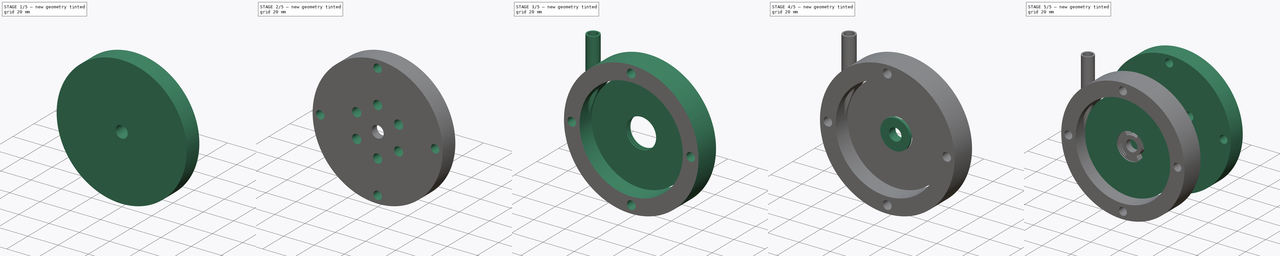
[diagram: build sequence overview — one tinted view per stage of 5, left to right]
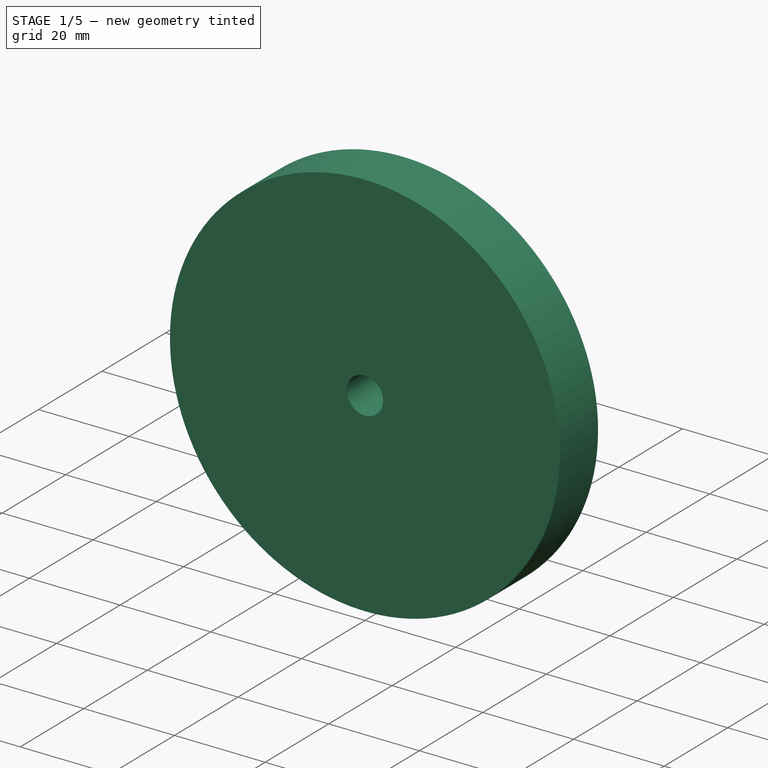
[diagram: stage 1 of 5 — iso view after this stage's code; geometry added in this stage tinted green]
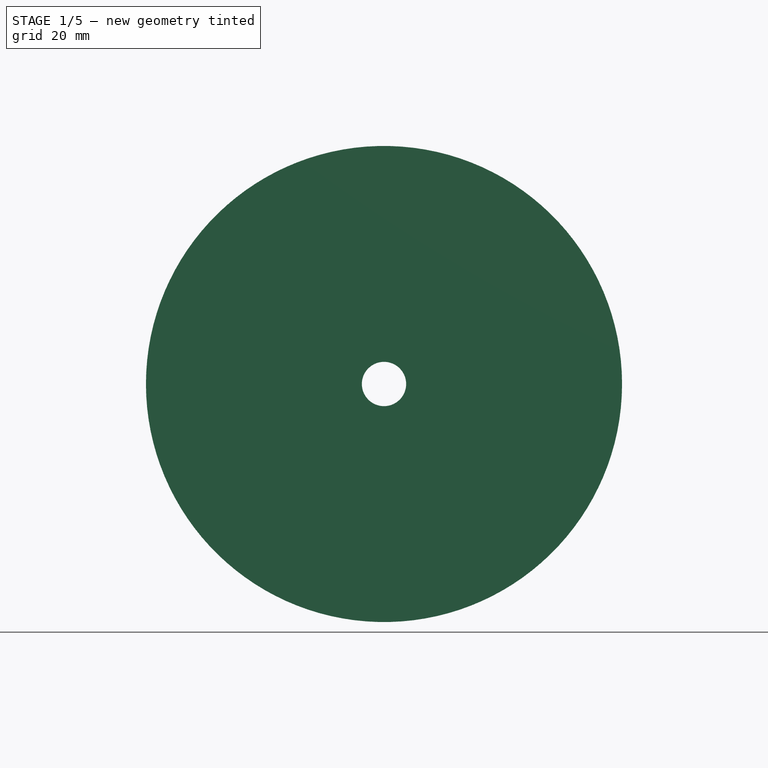
[diagram: stage 1 of 5 — front view after this stage's code; geometry added in this stage tinted green]
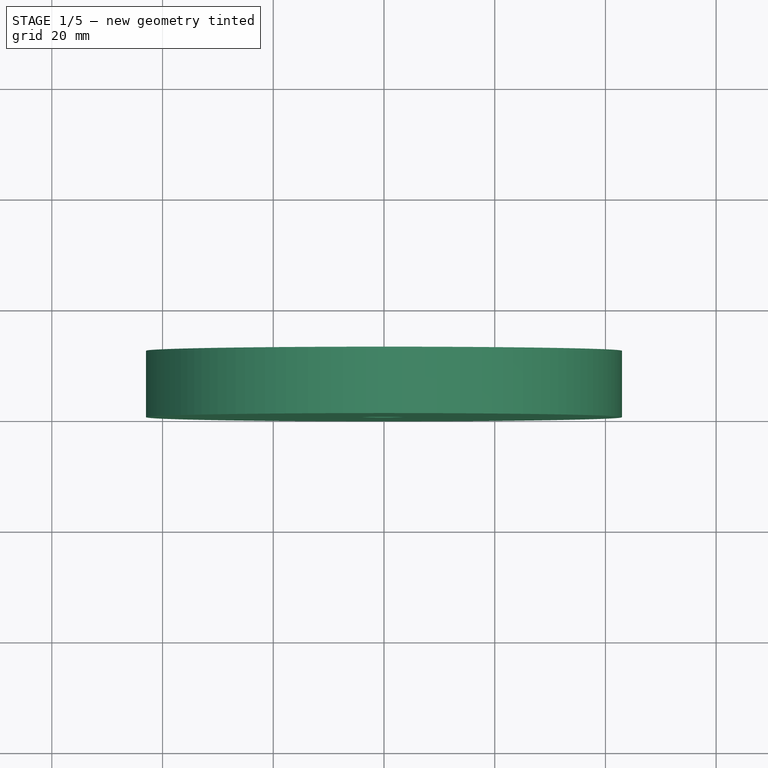
[diagram: stage 1 of 5 — top view after this stage's code; geometry added in this stage tinted green]
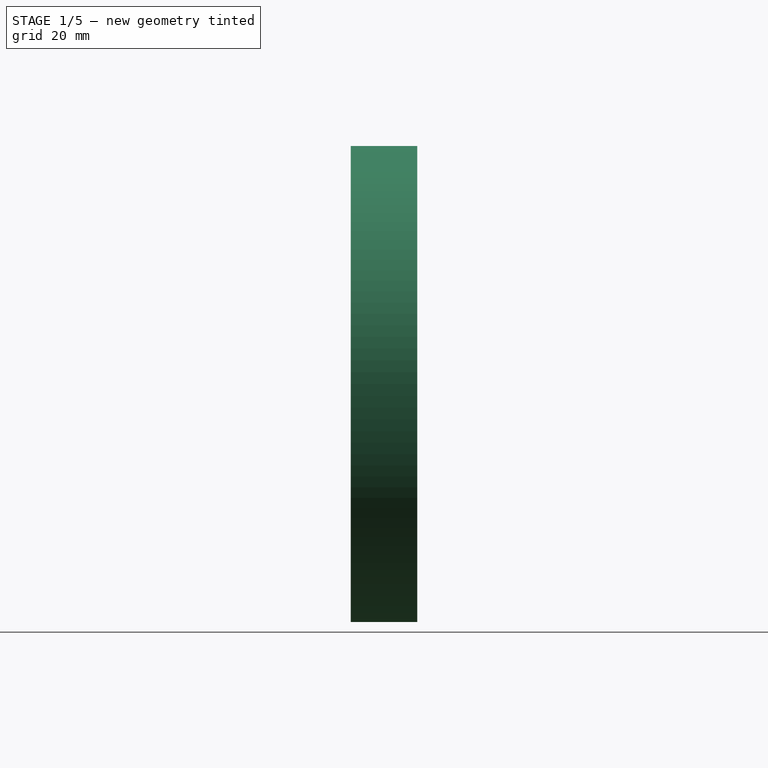
[diagram: stage 1 of 5 — right view after this stage's code; geometry added in this stage tinted green]
FCSTD DOCUMENT  (FreeCAD 0.17R13541 (Git))
Label: 特斯拉叶轮机-渲染
License: All rights reserved
LicenseURL: http://en.wikipedia.org/wiki/All_rights_reserved
objects: Raytracing::RayFeature×17, Sketcher::SketchObject×14, PartDesign::ShapeBinder×7, Part::Mirroring×7, PartDesign::Pocket×6, Part::Feature×6, PartDesign::Body×5, PartDesign::Pad×4, PartDesign::PolarPattern×4, PartDesign::Groove×2, PartDesign::Revolution×1, Part::Compound×1, Raytracing::RayProject×1
note: 70 computed .brp shape members not serialized (recipe doc carries the construction recipe); baked Part::Feature solids carry a one-line shape summary decoded from their .brp

FEATURE [Sketcher::SketchObject] Sketch
  MapMode = 5
  Placement = pos=(0,0,0) rot=(1,0,0;1.5708rad)
  Support = -> [XZ_Plane]
  sketch-geometry (14):
    g0: Circle CenterX=0 CenterY=0 CenterZ=0 NormalX=0 NormalY=0 NormalZ=1 AngleXU=0 Radius=4
    g1: Circle CenterX=0 CenterY=0 CenterZ=0 NormalX=0 NormalY=0 NormalZ=1 AngleXU=0 Radius=9.525
    g2: Circle CenterX=0 CenterY=0 CenterZ=0 NormalX=0 NormalY=0 NormalZ=1 AngleXU=0 Radius=43
    g3: Circle CenterX=0 CenterY=0 CenterZ=0 NormalX=0 NormalY=0 NormalZ=1 AngleXU=0 Radius=31.75
    g4: Circle CenterX=0 CenterY=0 CenterZ=0 NormalX=0 NormalY=0 NormalZ=1 AngleXU=0 Radius=33
    g5: LineSegment [constr] StartX=-31.75 StartY=0 StartZ=0 EndX=-33 EndY=0 EndZ=0
    g6: LineSegment [constr] StartX=-33 StartY=0 StartZ=0 EndX=-43 EndY=0 EndZ=0
    g7: LineSegment StartX=-33 StartY=0 StartZ=0 EndX=-30 EndY=0 EndZ=0
    g8: LineSegment StartX=-30 StartY=0 StartZ=0 EndX=-30 EndY=50 EndZ=0
    g9: LineSegment StartX=-30 StartY=50 StartZ=0 EndX=-33 EndY=50 EndZ=0
    g10: LineSegment StartX=-33 StartY=50 StartZ=0 EndX=-33 EndY=0 EndZ=0
    g11: LineSegment StartX=-30 StartY=50 StartZ=0 EndX=-26 EndY=50 EndZ=0
    g12: LineSegment StartX=-26 StartY=50 StartZ=0 EndX=-26 EndY=0 EndZ=0
    g13: LineSegment StartX=-26 StartY=0 StartZ=0 EndX=-30 EndY=0 EndZ=0
  constraints (36):
    c: Coincident(g0,g-1)
    c: Coincident(g1,g-1)
    c: Coincident(g2,g-1)
    c: Coincident(g3,g-1)
    c: Radius(g0) = 4  '轴半径'
    c: Coincident(g4,g-1)
    c: Radius(g1) = 9.525
    c: Radius(g3) = 31.75  '盘片半径'
    c: PointOnObject(g5,g3)
    c: PointOnObject(g5,g4)
    c: Coincident(g6,g5)
    c: PointOnObject(g6,g2)
    c: Horizontal(g6)
    c: PointOnObject(g5,g-1)
    c: Horizontal(g5)
    c: DistanceX(g5,g5) = 1.25  '盘片与腔体内壁间隙'
    c: DistanceX(g6,g5) = 10  '腔体壁厚'
    c: Coincident(g7,g8)
    c: Coincident(g8,g9)
    c: Coincident(g9,g10)
    c: Coincident(g10,g7)
    c: Horizontal(g7)
    c: Horizontal(g9)
    c: Vertical(g8)
    c: Vertical(g10)
    c: Coincident(g7,g5)
    c: Horizontal(g11)
    c: Coincident(g11,g12)
    c: Vertical(g12)
    c: Coincident(g12,g13)
    c: Coincident(g13,g7)
    c: Horizontal(g13)
    c: Coincident(g11,g8)
    c: DistanceX(g8,g11) = 4  '进气管外圆半径'
    c: DistanceX(g9,g8) = 3  '进气管内孔半径'
    c: DistanceY(g5,g9) = 50
FEATURE [PartDesign::Body] Body  label="核心"
  Group = -> [Sketch]
  Origin = -> Origin
FEATURE [PartDesign::ShapeBinder] ShapeBinder
  Support = -> [Sketch]
FEATURE [Sketcher::SketchObject] Sketch001
  ExternalGeometry = -> [ShapeBinder]
  MapMode = 5
  Placement = pos=(0,0,0) rot=(1,0,0;1.5708rad)
  Support = -> [XZ_Plane001]
  sketch-geometry (1):
    g0: Circle CenterX=0 CenterY=0 CenterZ=0 NormalX=0 NormalY=0 NormalZ=1 AngleXU=0 Radius=43
  constraints (2):
    c: Coincident(g0,g-1)
    c: PointOnObject(g-3,g0)
FEATURE [PartDesign::Pad] Pad  label="叶片腔体"
  Length = 16
  Length2 = 100
  Midplane = true
  Placement = pos=(0,0,0) rot=(1,0,0;1.5708rad)
  Profile = -> Sketch001
  Type = 0
FEATURE [Sketcher::SketchObject] Sketch002
  ExternalGeometry = -> [ShapeBinder]
  MapMode = 5
  Placement = pos=(0,0,0) rot=(1,0,0;1.5708rad)
  Support = -> [XZ_Plane001]
  sketch-geometry (4):
    g0: LineSegment StartX=-26 StartY=0 StartZ=0 EndX=-30 EndY=0 EndZ=0
    g1: LineSegment StartX=-30 StartY=0 StartZ=0 EndX=-30 EndY=50 EndZ=0
    g2: LineSegment StartX=-30 StartY=50 StartZ=0 EndX=-26 EndY=50 EndZ=0
    g3: LineSegment StartX=-26 StartY=50 StartZ=0 EndX=-26 EndY=0 EndZ=0
  constraints (10):
    c: Coincident(g0,g1)
    c: Coincident(g1,g2)
    c: Coincident(g2,g3)
    c: Coincident(g3,g0)
    c: Horizontal(g0)
    c: Horizontal(g2)
    c: Vertical(g1)
    c: Vertical(g3)
    c: Coincident(g0,g-4)
    c: Coincident(g1,g-3)
FEATURE [PartDesign::Revolution] Revolution  label="进气管"
  Angle = 360
  Axis = (0,0,1)
  Base = (-30,0,0)
  BaseFeature = -> Pad
  Placement = pos=(0,0,0) rot=(1,0,0;1.5708rad)
  Profile = -> Sketch002
  ReferenceAxis = -> ShapeBinder [Edge14]
FEATURE [Sketcher::SketchObject] Sketch003
  ExternalGeometry = -> [ShapeBinder]
  MapMode = 5
  Placement = pos=(0,0,0) rot=(1,0,0;1.5708rad)
  Support = -> [XZ_Plane001]
  sketch-geometry (1):
    g0: Circle CenterX=0 CenterY=0 CenterZ=0 NormalX=0 NormalY=0 NormalZ=1 AngleXU=0 Radius=33
  constraints (2):
    c: Coincident(g0,g-1)
    c: PointOnObject(g-3,g0)
FEATURE [PartDesign::Pocket] Pocket  label="叶片腔孔"
  BaseFeature = -> Revolution
  Length = 5
  Length2 = 100
  Midplane = true
  Placement = pos=(0,0,0) rot=(1,0,0;1.5708rad)
  Profile = -> Sketch003
  Type = 1
FEATURE [Sketcher::SketchObject] Sketch004
  ExternalGeometry = -> [ShapeBinder]
  MapMode = 5
  Placement = pos=(0,0,0) rot=(1,0,0;1.5708rad)
  Support = -> [XZ_Plane001]
  sketch-geometry (4):
    g0: LineSegment StartX=-30 StartY=50 StartZ=0 EndX=-33 EndY=50 EndZ=0
    g1: LineSegment StartX=-33 StartY=50 StartZ=0 EndX=-33 EndY=0 EndZ=0
    g2: LineSegment StartX=-33 StartY=0 StartZ=0 EndX=-30 EndY=0 EndZ=0
    g3: LineSegment StartX=-30 StartY=0 StartZ=0 EndX=-30 EndY=50 EndZ=0
  constraints (10):
    c: Coincident(g0,g1)
    c: Coincident(g1,g2)
    c: Coincident(g2,g3)
    c: Coincident(g3,g0)
    c: Horizontal(g0)
    c: Horizontal(g2)
    c: Vertical(g1)
    c: Vertical(g3)
    c: Coincident(g0,g-3)
    c: Coincident(g1,g-4)
FEATURE [PartDesign::Groove] Groove  label="进气管孔"
  Angle = 360
  Axis = (0,0,1)
  Base = (-30,0,0)
  BaseFeature = -> Pocket
  Placement = pos=(0,0,0) rot=(1,0,0;1.5708rad)
  Profile = -> Sketch004
  ReferenceAxis = -> ShapeBinder [Edge13]
FEATURE [PartDesign::Body] Body002  label="分流片"
  Group = -> [ShapeBinder001,Sketch005,Pad001,Sketch006,Pocket001,PolarPattern,Sketch007,Groove001]
  Origin = -> Origin002
  Tip = -> Groove001
FEATURE [PartDesign::ShapeBinder] ShapeBinder002  label="引用自核心的线"
  Support = -> [Sketch]
FEATURE [PartDesign::ShapeBinder] ShapeBinder003  label="引用叶片腔的侧面"
  Placement = pos=(0,0,0) rot=(1,0,0;1.5708rad)
  Support = -> [Groove]
FEATURE [Sketcher::SketchObject] Sketch008
  ExternalGeometry = -> [ShapeBinder003,ShapeBinder002]
  MapMode = 5
  Placement = pos=(0,-8,-1e-12) rot=(1,0,0;1.5708rad)
  Support = -> [ShapeBinder003]
  sketch-geometry (2):
    g0: Circle CenterX=0 CenterY=0 CenterZ=0 NormalX=0 NormalY=0 NormalZ=1 AngleXU=0 Radius=4
    g1: Circle CenterX=0 CenterY=0 CenterZ=0 NormalX=0 NormalY=0 NormalZ=1 AngleXU=0 Radius=43
  constraints (4):
    c: Coincident(g0,g-1)
    c: Coincident(g1,g-1)
    c: Equal(g1,g-3)
    c: Equal(g0,g-4)
FEATURE [PartDesign::Pad] Pad002  label="基础"
  Length = 12
  Length2 = 100
  Placement = pos=(0,0,0) rot=(1,0,0;1.5708rad)
  Profile = -> Sketch008
  Type = 0
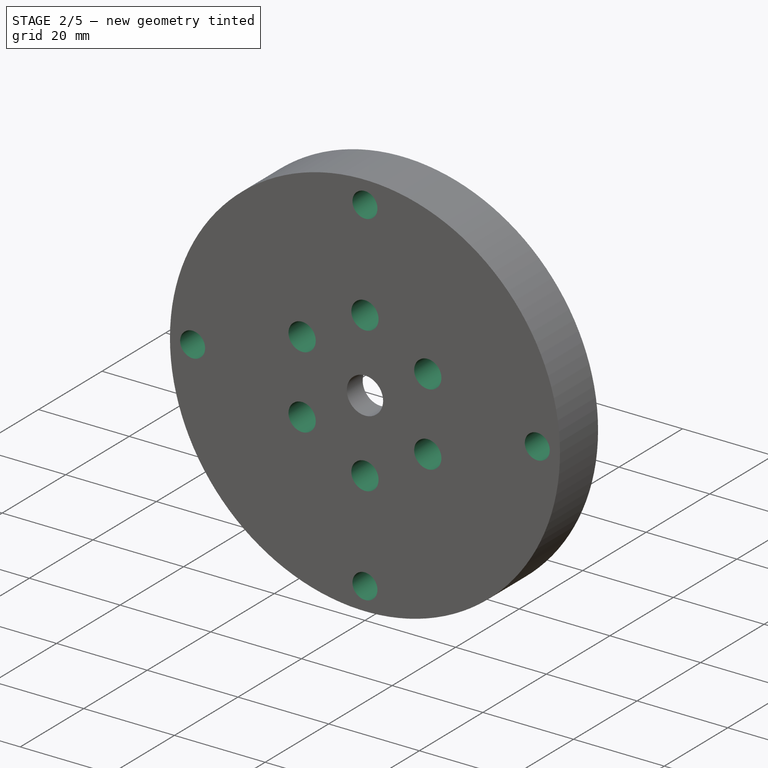
[diagram: stage 2 of 5 — iso view after this stage's code; geometry added in this stage tinted green]
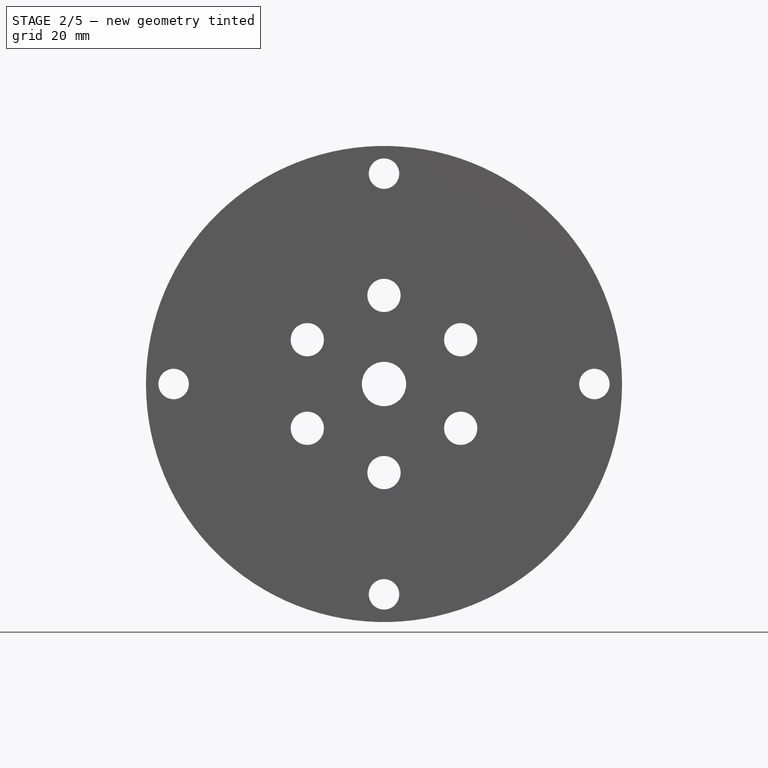
[diagram: stage 2 of 5 — front view after this stage's code; geometry added in this stage tinted green]
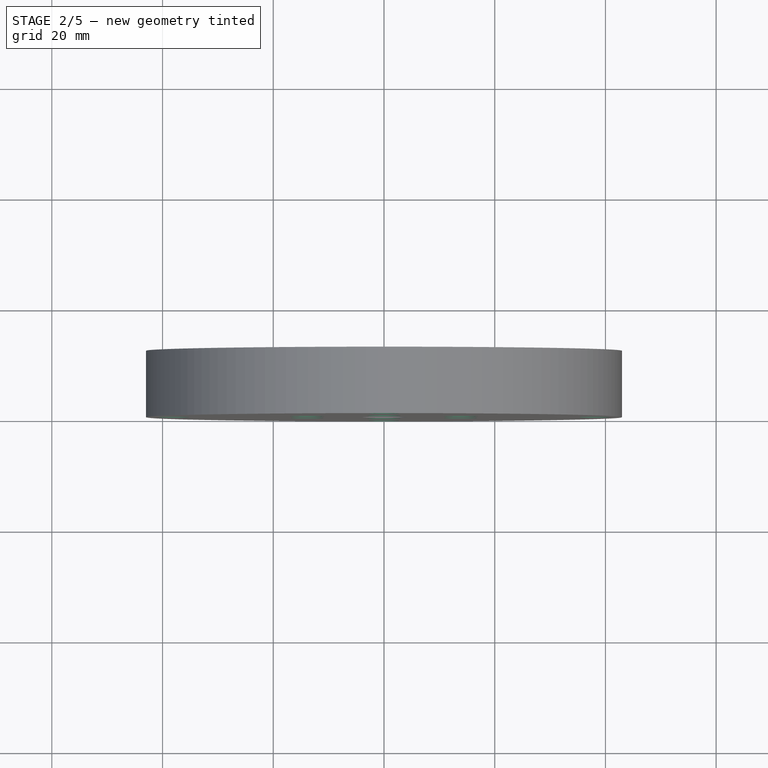
[diagram: stage 2 of 5 — top view after this stage's code; geometry added in this stage tinted green]
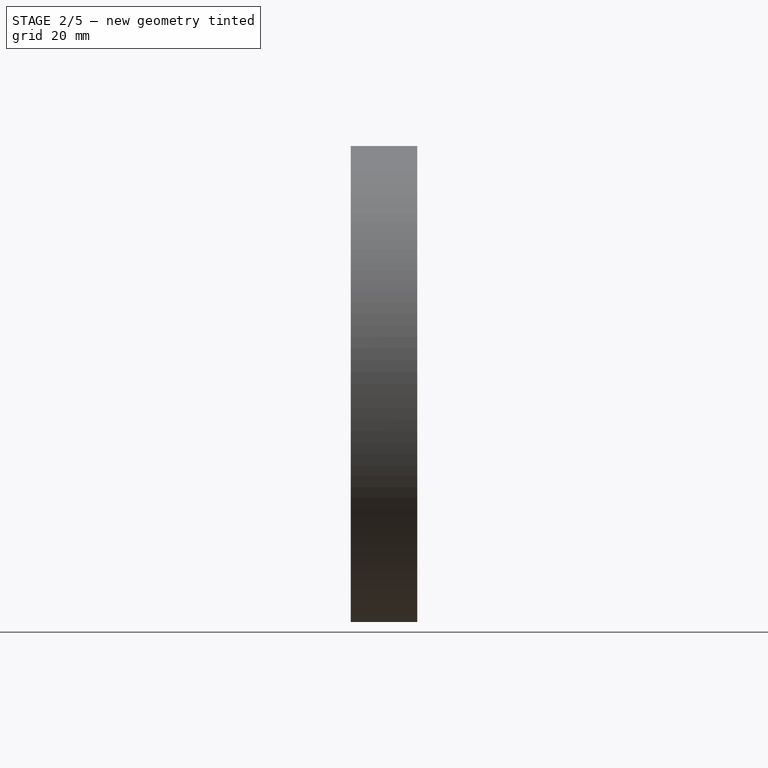
[diagram: stage 2 of 5 — right view after this stage's code; geometry added in this stage tinted green]
FEATURE [Sketcher::SketchObject] Sketch009
  MapMode = 5
  Placement = pos=(0,-8,-1e-12) rot=(-1,0,0;1.5708rad)
  Support = -> [Pad002]
  sketch-geometry (1):
    g0: Circle CenterX=0 CenterY=0 CenterZ=0 NormalX=0 NormalY=0 NormalZ=1 AngleXU=0 Radius=11
  constraints (2):
    c: Coincident(g0,g-1)
    c: Radius(g0) = 11
FEATURE [PartDesign::Pocket] Pocket002  label="轴承孔"
  BaseFeature = -> Pad002
  Length = 7
  Length2 = 100
  Placement = pos=(0,0,0) rot=(1,0,0;1.5708rad)
  Profile = -> Sketch009
  Type = 0
FEATURE [Sketcher::SketchObject] Sketch010
  MapMode = 5
  Placement = pos=(0,-8,-1e-12) rot=(-1,0,0;1.5708rad)
  Support = -> [Pocket002]
  sketch-geometry (1):
    g0: Circle CenterX=0 CenterY=16 CenterZ=0 NormalX=0 NormalY=0 NormalZ=1 AngleXU=0 Radius=3
  constraints (3):
    c: PointOnObject(g0,g-2)
    c: Radius(g0) = 3
    c: DistanceY(g-1,g0) = 16
FEATURE [PartDesign::Pocket] Pocket003  label="出气孔"
  BaseFeature = -> Pocket002
  Length = 5
  Length2 = 100
  Placement = pos=(0,0,0) rot=(1,0,0;1.5708rad)
  Profile = -> Sketch010
  Type = 1
FEATURE [PartDesign::PolarPattern] PolarPattern001  label="出气孔环形阵列"
  Angle = 360
  Axis = -> Sketch010 [N_Axis]
  BaseFeature = -> Pocket003
  Occurrences = 6
  Originals = -> [Pocket003]
  Placement = pos=(0,0,0) rot=(1,0,0;1.5708rad)
FEATURE [Sketcher::SketchObject] Sketch011
  ExternalGeometry = -> [ShapeBinder002]
  MapMode = 5
  Placement = pos=(0,-8,-1e-12) rot=(-1,0,0;1.5708rad)
  Support = -> [PolarPattern001]
  sketch-geometry (2):
    g0: Circle CenterX=0 CenterY=38 CenterZ=0 NormalX=0 NormalY=0 NormalZ=1 AngleXU=0 Radius=2.75
    g1: LineSegment [constr] StartX=0 StartY=38 StartZ=0 EndX=0 EndY=33 EndZ=0
  constraints (6):
    c: PointOnObject(g0,g-2)
    c: Radius(g0) = 2.75
    c: Coincident(g1,g0)
    c: PointOnObject(g1,g-3)
    c: Vertical(g1)
    c: DistanceY(g1,g0) = 5
FEATURE [PartDesign::Pocket] Pocket004  label="安装孔"
  BaseFeature = -> PolarPattern001
  Length = 5
  Length2 = 100
  Placement = pos=(0,0,0) rot=(1,0,0;1.5708rad)
  Profile = -> Sketch011
  Type = 1
FEATURE [PartDesign::PolarPattern] PolarPattern002  label="安装孔环形阵列"
  Angle = 360
  Axis = -> Sketch011 [N_Axis]
  BaseFeature = -> Pocket004
  Occurrences = 4
  Originals = -> [Pocket004]
  Placement = pos=(0,0,0) rot=(1,0,0;1.5708rad)
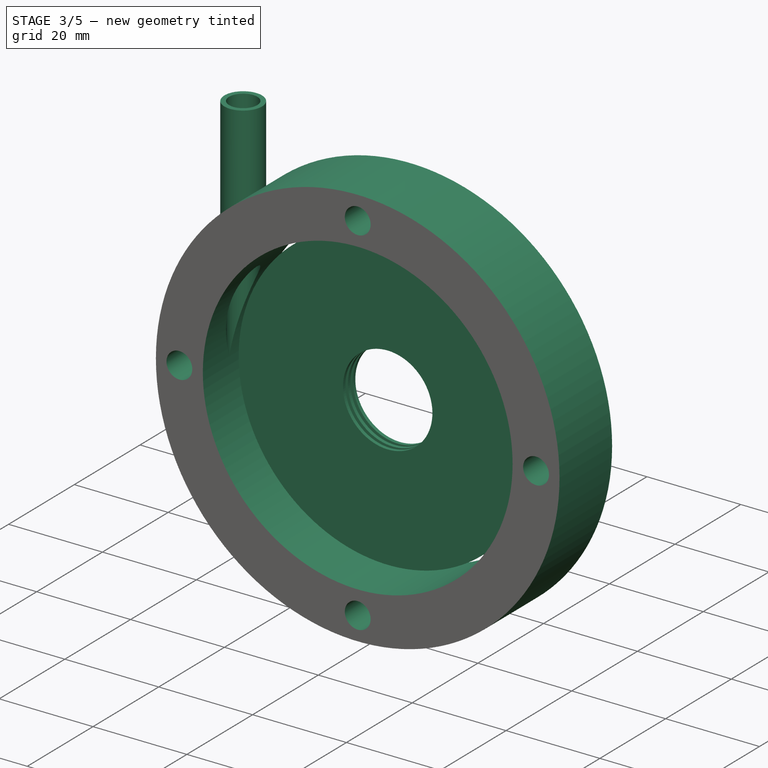
[diagram: stage 3 of 5 — iso view after this stage's code; geometry added in this stage tinted green]
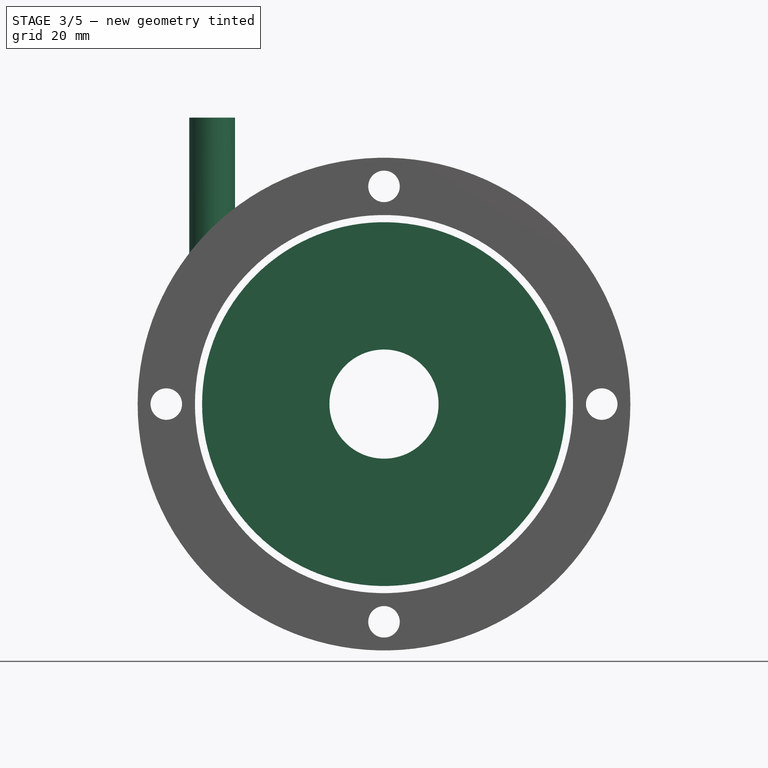
[diagram: stage 3 of 5 — front view after this stage's code; geometry added in this stage tinted green]
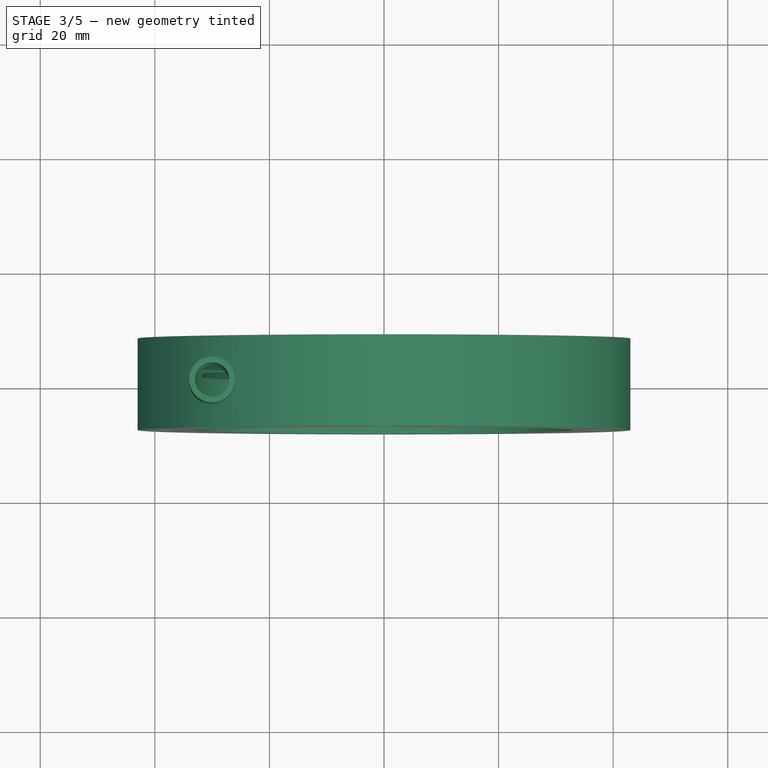
[diagram: stage 3 of 5 — top view after this stage's code; geometry added in this stage tinted green]
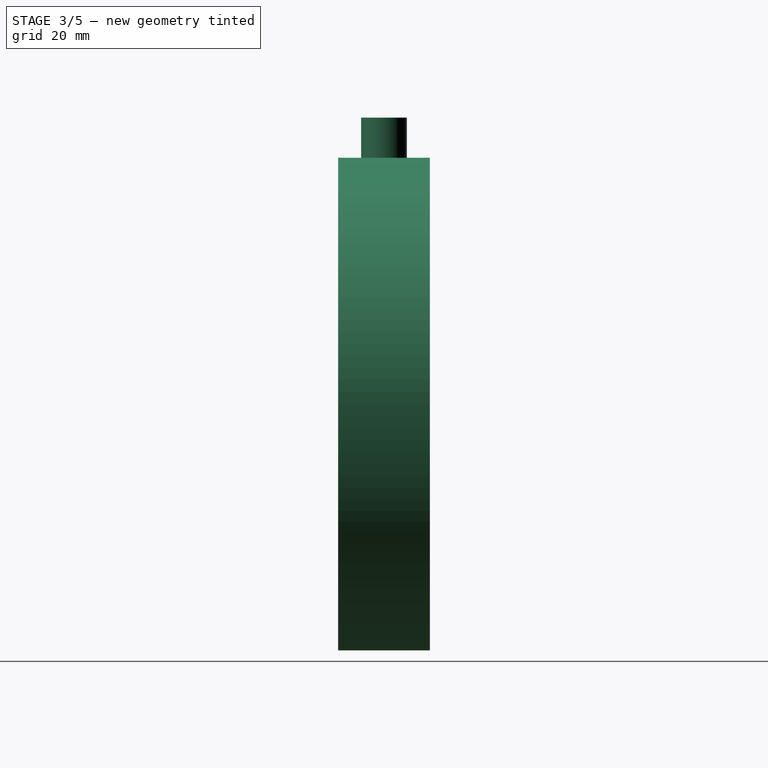
[diagram: stage 3 of 5 — right view after this stage's code; geometry added in this stage tinted green]
FEATURE [Part::Mirroring] Part__Mirroring004  label="盘片001 (Mirror #5)"
  Base = (0,0,0)
  Normal = (0,1,0)
  Source = -> Body004001
FEATURE [Part::Mirroring] Part__Mirroring005  label="盘片002 (Mirror #6)"
  Base = (0,0,0)
  Normal = (0,1,0)
  Source = -> Body004002
FEATURE [Part::Mirroring] Part__Mirroring006  label="盘片003 (Mirror #7)"
  Base = (0,0,0)
  Normal = (0,1,0)
  Source = -> Body004003
FEATURE [PartDesign::ShapeBinder] ShapeBinder006  label="引用自盖板甲的内侧面"
  Placement = pos=(0,0,0) rot=(1,0,0;1.5708rad)
  Support = -> [PolarPattern002]
FEATURE [Sketcher::SketchObject] Sketch013
  ExternalGeometry = -> [ShapeBinder006]
  MapMode = 5
  Placement = pos=(0,-8,-1e-12) rot=(1,0,0;1.5708rad)
  Support = -> [Groove]
  sketch-geometry (1):
    g0: Circle CenterX=38 CenterY=0 CenterZ=0 NormalX=0 NormalY=0 NormalZ=1 AngleXU=0 Radius=2.75
  constraints (2):
    c: Coincident(g0,g-3)
    c: Equal(g0,g-3)
FEATURE [PartDesign::Pocket] Pocket005
  BaseFeature = -> Groove
  Length = 5
  Length2 = 100
  Placement = pos=(0,0,0) rot=(1,0,0;1.5708rad)
  Profile = -> Sketch013
  Type = 1
FEATURE [PartDesign::PolarPattern] PolarPattern003
  Angle = 360
  Axis = -> Sketch013 [N_Axis]
  BaseFeature = -> Pocket005
  Occurrences = 4
  Originals = -> [Pocket005]
  Placement = pos=(0,0,0) rot=(1,0,0;1.5708rad)
FEATURE [PartDesign::Body] Body001  label="叶片腔"
  Group = -> [ShapeBinder,Sketch001,Pad,Sketch002,Revolution,Sketch003,Pocket,Sketch004,Groove,ShapeBinder006,Sketch013,Pocket005,PolarPattern003]
  Origin = -> Origin001
  Tip = -> PolarPattern003
FEATURE [Raytracing::RayFeature] Body001_View
  Result = <blob: 90500 chars omitted>
  Source = -> Body001
  Transparency = 50
FEATURE [Raytracing::RayFeature] Body002_View
  Result = <blob: 55484 chars omitted>
  Source = -> Body002
  Transparency = 0
FEATURE [Raytracing::RayFeature] Body003_View
  Result = <blob: 122563 chars omitted>
  Source = -> Body003
  Transparency = 0
FEATURE [Raytracing::RayFeature] Part__Mirroring_View
  Result = <blob: 121509 chars omitted>
  Source = -> Part__Mirroring
  Transparency = 0
FEATURE [Raytracing::RayFeature] Body004_View
  Result = <blob: 27586 chars omitted>
  Source = -> Body004
  Transparency = 0
FEATURE [Raytracing::RayFeature] Part__Mirroring001_View
  Result = <blob: 55415 chars omitted>
  Source = -> Part__Mirroring001
  Transparency = 0
FEATURE [Raytracing::RayFeature] Body002001_View
  Result = <blob: 55550 chars omitted>
  Source = -> Body002001
  Transparency = 0
FEATURE [Raytracing::RayFeature] Body002002_View
  Result = <blob: 55544 chars omitted>
  Source = -> Body002002
  Transparency = 0
FEATURE [Raytracing::RayFeature] Body002003_View
  Result = <blob: 55549 chars omitted>
  Source = -> Body002003
  Transparency = 0
FEATURE [Raytracing::RayFeature] Body004001_View
  Result = <blob: 27814 chars omitted>
  Source = -> Body004001
  Transparency = 0
FEATURE [Raytracing::RayFeature] Body004002_View
  Result = <blob: 27813 chars omitted>
  Source = -> Body004002
  Transparency = 0
FEATURE [Raytracing::RayFeature] Body004003_View
  Result = <blob: 27815 chars omitted>
  Source = -> Body004003
  Transparency = 0
FEATURE [Raytracing::RayFeature] Part__Mirroring002_View
  Result = <blob: 55402 chars omitted>
  Source = -> Part__Mirroring002
  Transparency = 0
FEATURE [Raytracing::RayFeature] Part__Mirroring003_View
  Result = <blob: 55448 chars omitted>
  Source = -> Part__Mirroring003
  Transparency = 0
FEATURE [Raytracing::RayFeature] Part__Mirroring004_View
  Result = <blob: 27524 chars omitted>
  Source = -> Part__Mirroring004
  Transparency = 0
FEATURE [Raytracing::RayFeature] Part__Mirroring005_View
  Result = <blob: 27538 chars omitted>
  Source = -> Part__Mirroring005
  Transparency = 0
FEATURE [Raytracing::RayFeature] Part__Mirroring006_View
  Result = <blob: 27537 chars omitted>
  Source = -> Part__Mirroring006
  Transparency = 0
FEATURE [Raytracing::RayProject] PovProject
  Camera = // declares position and view direction\n\n// Generated by FreeCAD (http://www.freecadweb.org/)\n#declare cam_location =  <154.697,121.428,-76.0398>;\n#declare cam_look_at  = <8.33107,-2.83297,6.86108>;\n#declare cam_sky      = <-0.517004,0.804338,0.292828>;\n#declare cam_angle    = 45; \ncamera {\n  location  cam_location\n  look_at   cam_look_at\n  sky       cam_sky\n  angle     cam_angle \n  right x*4000/3000\n}
  Group = -> [Body001_View,Body002_View,Body003_View,Part__Mirroring_View,Body004_View,Part__Mirroring001_View,Body002001_View,Body002002_View,Body002003_View,Body004001_View,Body004002_View,Body004003_View,Part__Mirroring002_View,Part__Mirroring003_View,Part__Mirroring004_View,Part__Mirroring005_View,Part__Mirroring006_View]
  Template = /Applications/FreeCAD.app/Contents/data/Mod/Raytracing/Templates/RadiosityNormal.pov
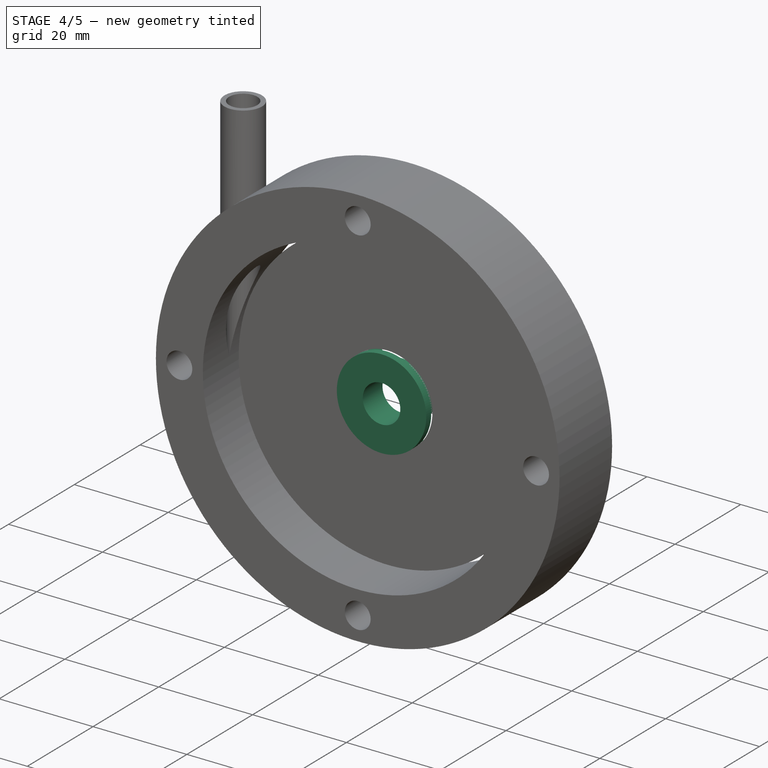
[diagram: stage 4 of 5 — iso view after this stage's code; geometry added in this stage tinted green]
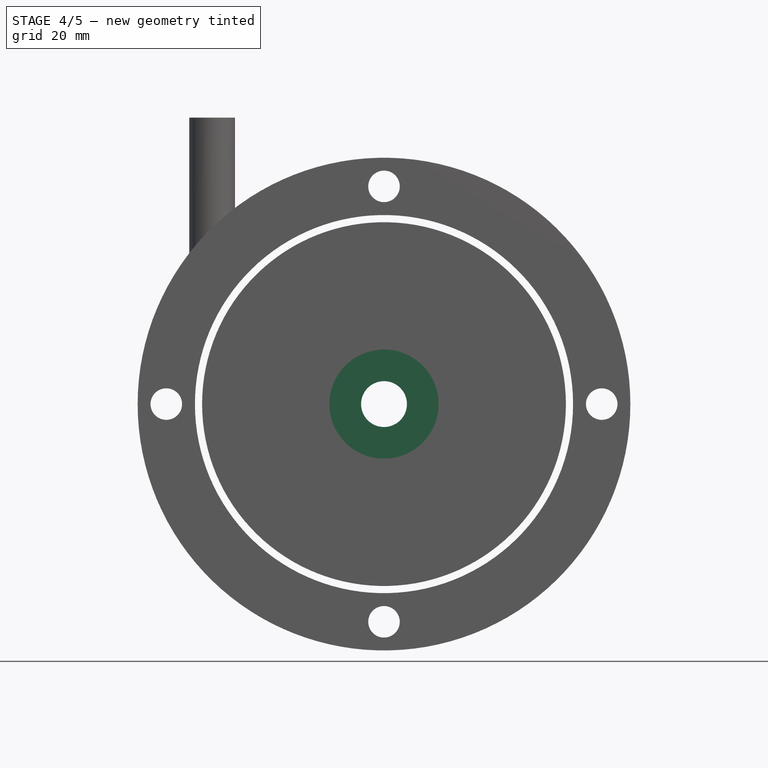
[diagram: stage 4 of 5 — front view after this stage's code; geometry added in this stage tinted green]
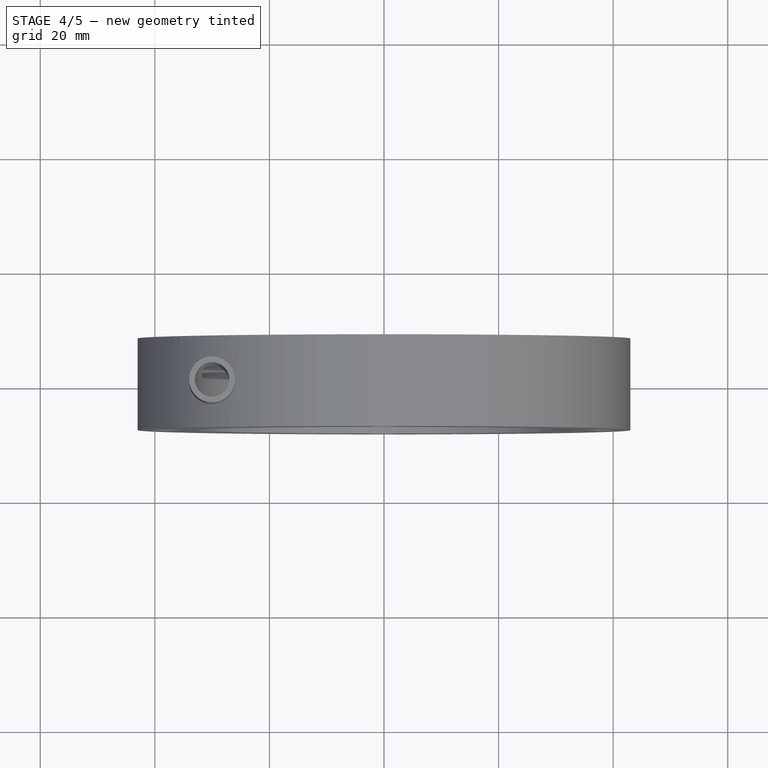
[diagram: stage 4 of 5 — top view after this stage's code; geometry added in this stage tinted green]
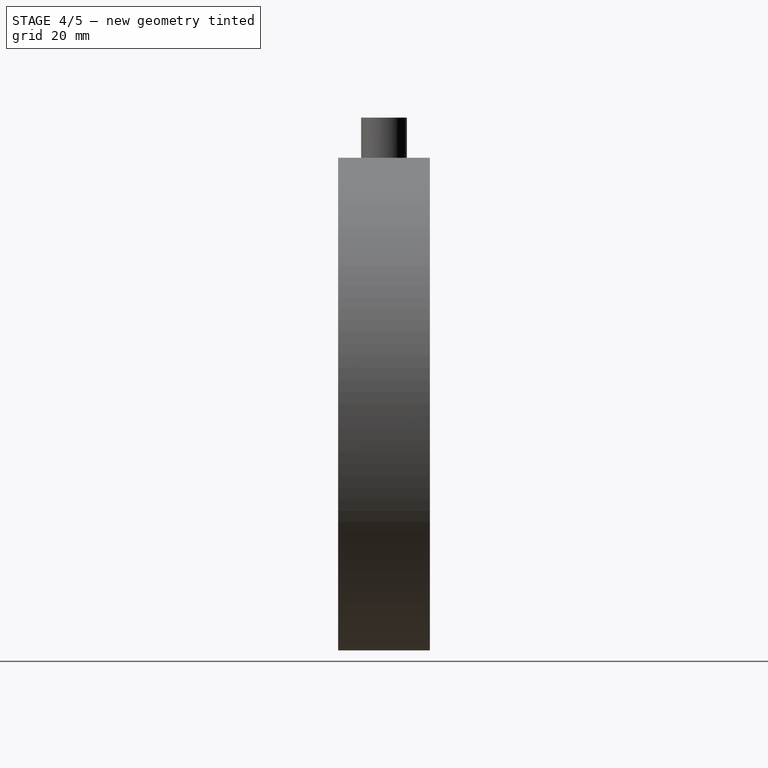
[diagram: stage 4 of 5 — right view after this stage's code; geometry added in this stage tinted green]
FEATURE [PartDesign::ShapeBinder] ShapeBinder001
  Support = -> [Sketch]
FEATURE [Sketcher::SketchObject] Sketch005
  ExternalGeometry = -> [ShapeBinder001]
  MapMode = 5
  Placement = pos=(0,0,0) rot=(1,0,0;1.5708rad)
  Support = -> [XZ_Plane002]
  sketch-geometry (2):
    g0: Circle CenterX=0 CenterY=0 CenterZ=0 NormalX=0 NormalY=0 NormalZ=1 AngleXU=0 Radius=9.525
    g1: Circle CenterX=0 CenterY=0 CenterZ=0 NormalX=0 NormalY=0 NormalZ=1 AngleXU=0 Radius=4
  constraints (4):
    c: Coincident(g0,g-1)
    c: Coincident(g1,g-1)
    c: Equal(g1,g-4)
    c: Equal(g-3,g0)
FEATURE [PartDesign::Pad] Pad001  label="分流片基体"
  Length = 1.5
  Length2 = 100
  Midplane = true
  Placement = pos=(0,0,0) rot=(1,0,0;1.5708rad)
  Profile = -> Sketch005
  Type = 0
FEATURE [PartDesign::Body] Body004  label="盘片"
  Group = -> [ShapeBinder004,ShapeBinder005,Sketch012,Pad003]
  Origin = -> Origin004
  Tip = -> Pad003
FEATURE [Part::Feature] Body002001  label="分流片001"
  Placement = pos=(0,-1.5,0) rot=(0,0,1;0rad)
  shape: bbox 19.05 x 1.5 x 17.77 mm, 21 faces (baked)
FEATURE [Part::Feature] Body002002  label="分流片002"
  Placement = pos=(0,-3,0) rot=(0,0,1;0rad)
  shape: bbox 19.05 x 1.5 x 17.77 mm, 21 faces (baked)
FEATURE [Part::Feature] Body002003  label="分流片003"
  Placement = pos=(0,-4.5,0) rot=(0,0,1;0rad)
  shape: bbox 19.05 x 1.5 x 17.77 mm, 21 faces (baked)
FEATURE [Part::Feature] Body004001  label="盘片001"
  Placement = pos=(0,-1.5,0) rot=(0,0,1;0rad)
  shape: bbox 63.5 x 0.75 x 63.5 mm, 4 faces (baked)
FEATURE [Part::Feature] Body004002  label="盘片002"
  Placement = pos=(0,-3,0) rot=(0,0,1;0rad)
  shape: bbox 63.5 x 0.75 x 63.5 mm, 4 faces (baked)
FEATURE [Part::Feature] Body004003  label="盘片003"
  Placement = pos=(0,-4.5,0) rot=(0,0,1;0rad)
  shape: bbox 63.5 x 0.75 x 63.5 mm, 4 faces (baked)
FEATURE [Part::Mirroring] Part__Mirroring001  label="分流片001 (Mirror #2)"
  Base = (0,0,0)
  Normal = (0,1,0)
  Source = -> Body002001
FEATURE [Part::Mirroring] Part__Mirroring002  label="分流片002 (Mirror #3)"
  Base = (0,0,0)
  Normal = (0,1,0)
  Source = -> Body002002
FEATURE [Part::Mirroring] Part__Mirroring003  label="分流片003 (Mirror #4)"
  Base = (0,0,0)
  Normal = (0,1,0)
  Source = -> Body002003
FEATURE [Part::Compound] Compound  label="分流片和盘片的副本"
  Links = -> [Part__Mirroring001,Part__Mirroring006,Part__Mirroring005,Part__Mirroring004,Part__Mirroring002,Part__Mirroring003]
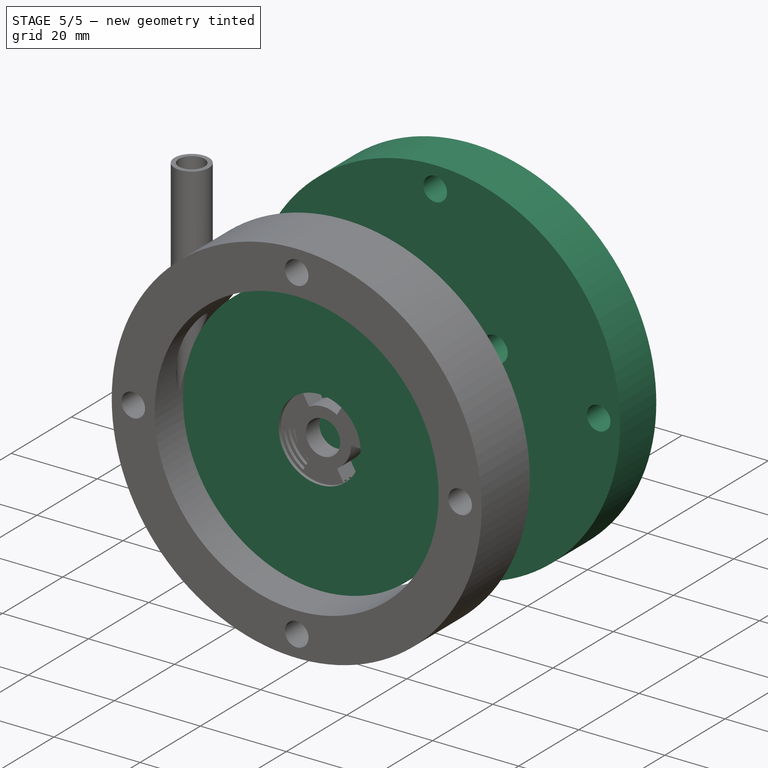
[diagram: stage 5 of 5 — iso view after this stage's code; geometry added in this stage tinted green]
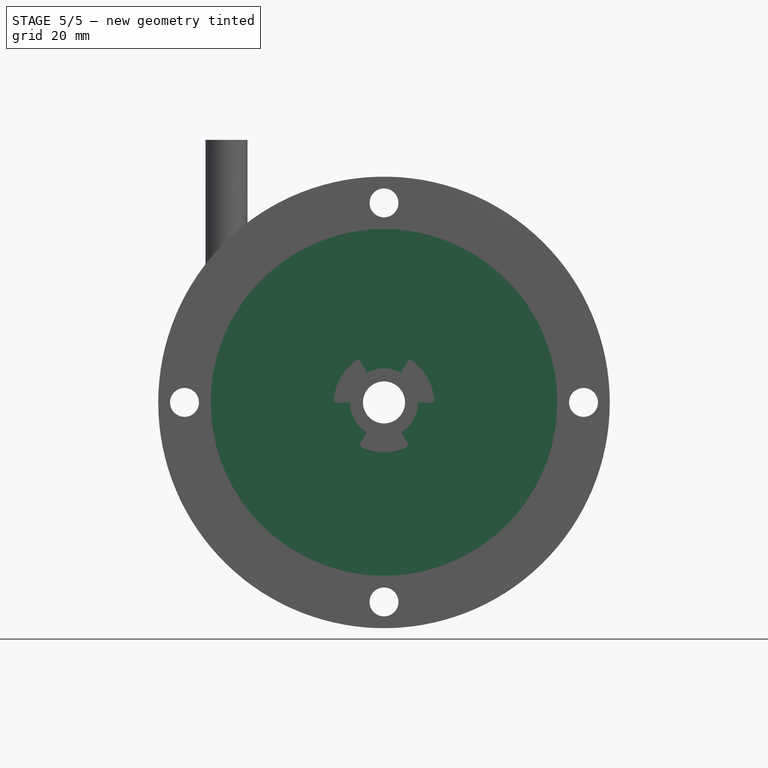
[diagram: stage 5 of 5 — front view after this stage's code; geometry added in this stage tinted green]
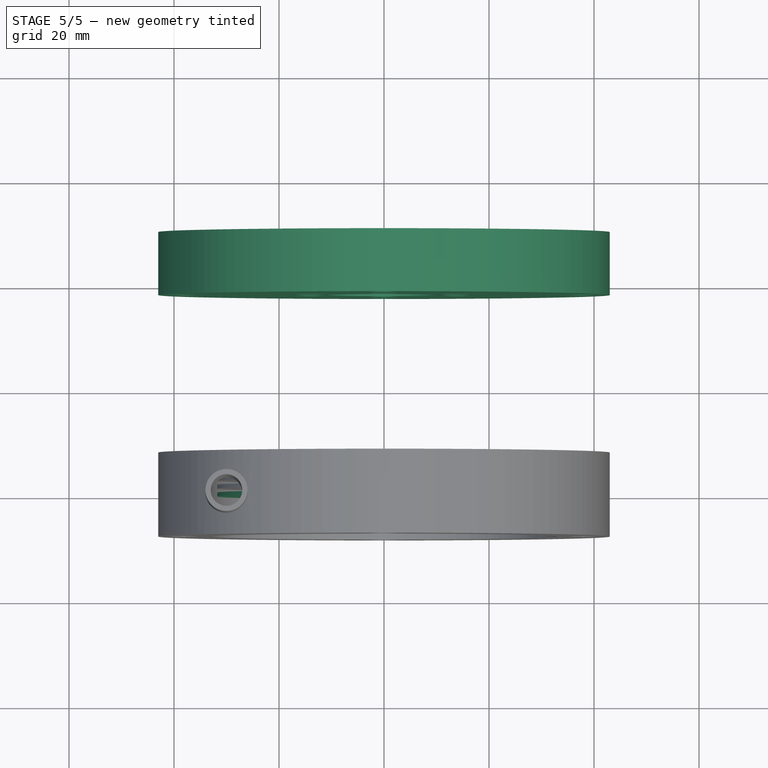
[diagram: stage 5 of 5 — top view after this stage's code; geometry added in this stage tinted green]
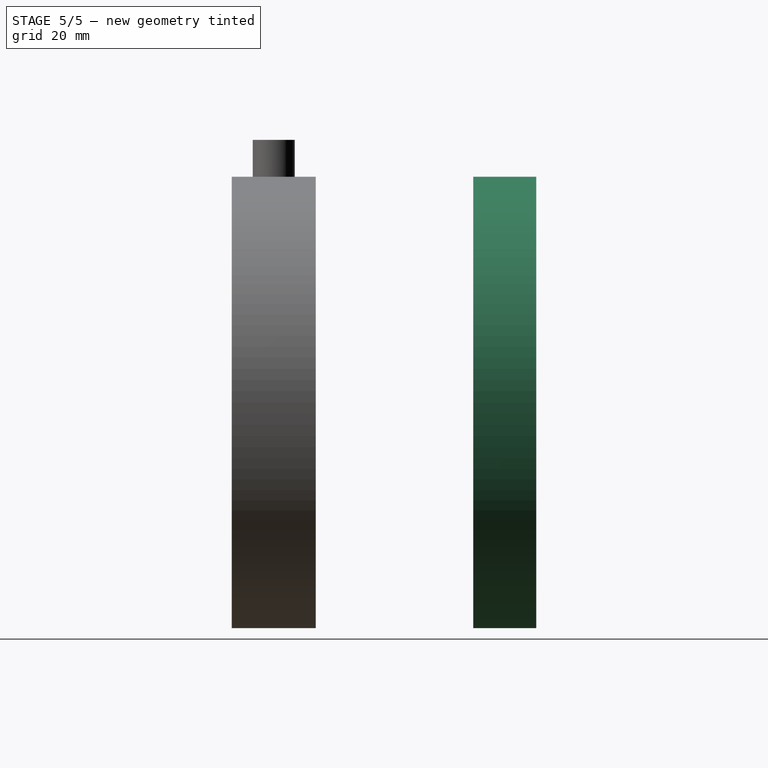
[diagram: stage 5 of 5 — right view after this stage's code; geometry added in this stage tinted green]
FEATURE [Sketcher::SketchObject] Sketch006
  ExternalGeometry = -> [ShapeBinder001]
  MapMode = 5
  Placement = pos=(0,0,0) rot=(1,0,0;1.5708rad)
  Support = -> [XZ_Plane002]
  sketch-geometry (8):
    g0: LineSegment [constr] StartX=0 StartY=0 StartZ=0 EndX=4.7625 EndY=8.24889 EndZ=0
    g1: LineSegment [constr] StartX=4.7625 StartY=8.24889 StartZ=0 EndX=-4.7625 EndY=8.24889 EndZ=0
    g2: LineSegment [constr] StartX=-4.7625 StartY=8.24889 StartZ=0 EndX=0 EndY=0 EndZ=0
    g3: Circle [constr] CenterX=0 CenterY=5.49926 CenterZ=0 NormalX=0 NormalY=0 NormalZ=1 AngleXU=0 Radius=5.49926
    g4: ArcOfCircle CenterX=0 CenterY=0 CenterZ=0 NormalX=0 NormalY=0 NormalZ=1 AngleXU=0 Radius=6.5 StartAngle=1.0472 EndAngle=2.0944
    g5: ArcOfCircle CenterX=0 CenterY=0 CenterZ=0 NormalX=0 NormalY=0 NormalZ=1 AngleXU=0 Radius=9.525 StartAngle=1.0472 EndAngle=2.0944
    g6: LineSegment StartX=-4.7625 StartY=8.24889 StartZ=0 EndX=-3.25 EndY=5.62917 EndZ=0
    g7: LineSegment StartX=4.7625 StartY=8.24889 StartZ=0 EndX=3.25 EndY=5.62917 EndZ=0
  constraints (23):
    c: Coincident(g0,g1)
    c: Coincident(g1,g2)
    c: Coincident(g2,g0)
    c: Equal(g0,g1)
    c: Equal(g0,g2)
    c: PointOnObject(g0,g3)
    c: PointOnObject(g1,g3)
    c: PointOnObject(g2,g3)
    c: PointOnObject(g3,g-2)
    c: Coincident(g2,g-1)
    c: PointOnObject(g0,g-3)
    c: Coincident(g4,g-1)
    c: Radius(g4) = 6.5
    c: Coincident(g5,g-1)
    c: Equal(g5,g-3)
    c: PointOnObject(g5,g0)
    c: PointOnObject(g5,g1)
    c: PointOnObject(g4,g0)
    c: PointOnObject(g4,g2)
    c: Coincident(g6,g1)
    c: Coincident(g6,g4)
    c: Coincident(g7,g0)
    c: Coincident(g7,g4)
FEATURE [PartDesign::Pocket] Pocket001  label="分流槽"
  BaseFeature = -> Pad001
  Length = 5
  Length2 = 100
  Midplane = true
  Placement = pos=(0,0,0) rot=(1,0,0;1.5708rad)
  Profile = -> Sketch006
  Type = 1
FEATURE [PartDesign::PolarPattern] PolarPattern  label="分流槽环形阵列"
  Angle = 360
  Axis = -> Sketch006 [N_Axis]
  BaseFeature = -> Pocket001
  Occurrences = 3
  Originals = -> [Pocket001]
  Placement = pos=(0,0,0) rot=(1,0,0;1.5708rad)
FEATURE [Sketcher::SketchObject] Sketch007
  MapMode = 5
  Placement = pos=(0,0,0) rot=(0.57735,0.57735,0.57735;2.0944rad)
  Support = -> [YZ_Plane002]
  sketch-geometry (1):
    g0: Circle CenterX=0 CenterY=9.7 CenterZ=0 NormalX=0 NormalY=0 NormalZ=1 AngleXU=0 Radius=0.5
  constraints (3):
    c: PointOnObject(g0,g-2)
    c: Radius(g0) = 0.5
    c: DistanceY(g-1,g0) = 9.7
FEATURE [PartDesign::Groove] Groove001  label="扶持槽"
  Angle = 360
  Axis = (0,1,0)
  Base = (0,0,0)
  BaseFeature = -> PolarPattern
  Placement = pos=(0,0,0) rot=(1,0,0;1.5708rad)
  Profile = -> Sketch007
  ReferenceAxis = -> Y_Axis002
FEATURE [PartDesign::Body] Body003  label="盖板甲"
  Group = -> [ShapeBinder002,ShapeBinder003,Sketch008,Pad002,Sketch009,Pocket002,Sketch010,Pocket003,PolarPattern001,Sketch011,Pocket004,PolarPattern002]
  Origin = -> Origin003
  Placement = pos=(0,-30,0) rot=(0,0,1;0rad)
  Tip = -> PolarPattern002
FEATURE [Part::Mirroring] Part__Mirroring  label="盖板乙"
  Base = (0,0,1.90734e-06)
  Normal = (0,1,-1.19209e-07)
  Placement = pos=(0,30,0) rot=(0,0,1;0rad)
  Source = -> PolarPattern002
FEATURE [PartDesign::ShapeBinder] ShapeBinder004
  Support = -> [Sketch]
FEATURE [PartDesign::ShapeBinder] ShapeBinder005
  Placement = pos=(0,0,0) rot=(1,0,0;1.5708rad)
  Support = -> [Groove001]
FEATURE [Sketcher::SketchObject] Sketch012
  ExternalGeometry = -> [ShapeBinder005,ShapeBinder004]
  MapMode = 5
  Placement = pos=(0,0,0) rot=(1,0,0;1.5708rad)
  Support = -> [XZ_Plane004]
  sketch-geometry (2):
    g0: Circle CenterX=0 CenterY=0 CenterZ=0 NormalX=0 NormalY=0 NormalZ=1 AngleXU=0 Radius=9.525
    g1: Circle CenterX=0 CenterY=0 CenterZ=0 NormalX=0 NormalY=0 NormalZ=1 AngleXU=0 Radius=31.75
  constraints (4):
    c: Coincident(g0,g-1)
    c: Coincident(g1,g-1)
    c: Equal(g1,g-4)
    c: Equal(g0,g-3)
FEATURE [PartDesign::Pad] Pad003
  Length = 0.75
  Length2 = 100
  Midplane = true
  Placement = pos=(0,0,0) rot=(1,0,0;1.5708rad)
  Profile = -> Sketch012
  Type = 0
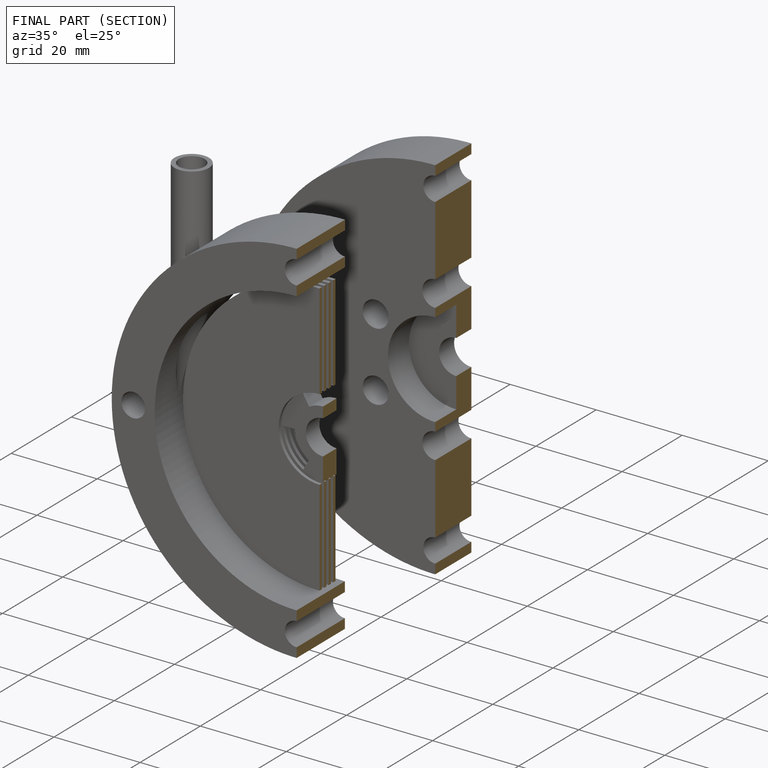
[diagram: finished part — half-section view (interior)]
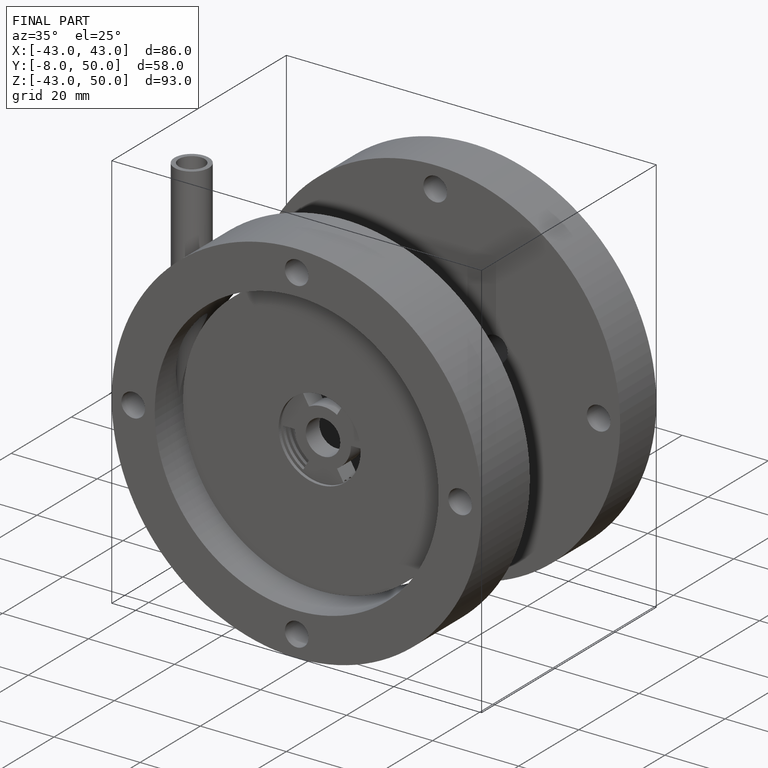
[diagram: finished part — iso view with bounding-box wireframe]
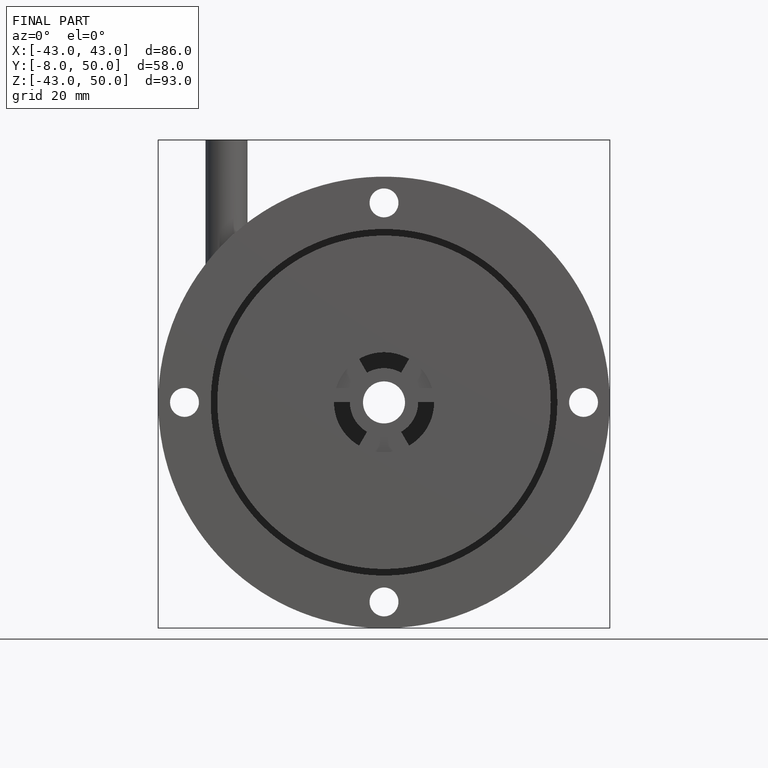
[diagram: finished part — front view with bounding-box wireframe]
